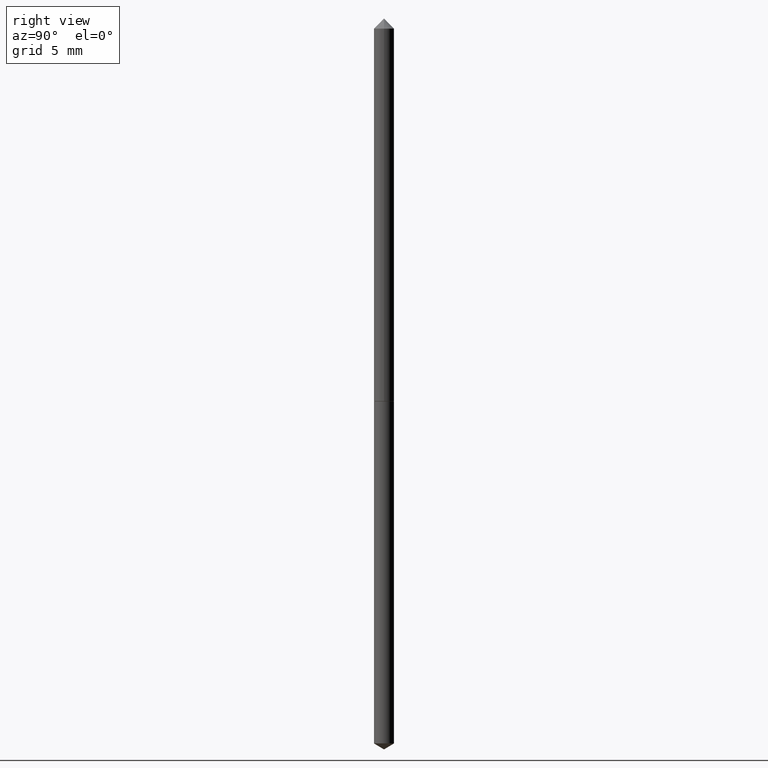
[diagram: clean part render]
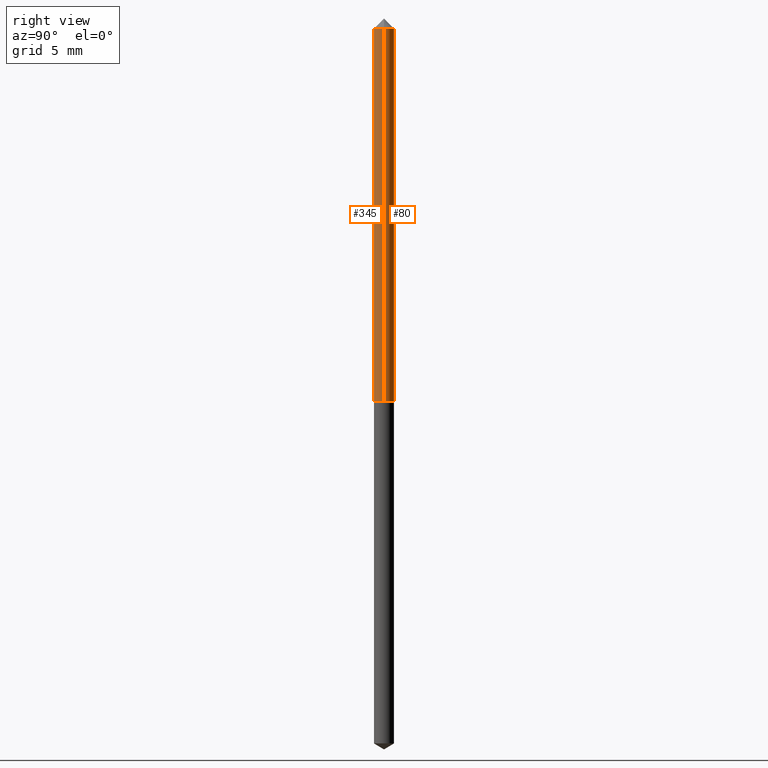
[diagram: same view with one multi-face feature highlighted, each face labeled with its STEP entity id]
A machine part, right view. The highlighted faces form ONE feature: a constant-radius fillet chain: 2 tangent blend faces with common blend radius 0.5207 mm. The faces share edges in the B-rep.
Their STEP definitions:
[1] entity #345 (Cylinder):
#2 = CARTESIAN_POINT ( 'NONE',  ( 0.02050000000000000433, -2.522595267314175209E-16, -0.03125000000000020123 ) ) ;
#13 = VECTOR ( 'NONE', #362, 39.37007874015748143 ) ;
#18 = DIRECTION ( 'NONE',  ( 1.000000000000000000, -6.982962677686267499E-15, 0.000000000000000000 ) ) ;
#48 = CARTESIAN_POINT ( 'NONE',  ( 7.642090019328601786E-31, -1.091087918388490144E-16, -0.03125000000000020123 ) ) ;
#59 = EDGE_CURVE ( 'NONE', #230, #143, #349, .T. ) ;
#63 = VERTEX_POINT ( 'NONE', #240 ) ;
#87 = CARTESIAN_POINT ( 'NONE',  ( -0.02050000000000005290, 1.456612608308209140E-16, -1.008381693502258247E-30 ) ) ;
#96 = DIRECTION ( 'NONE',  ( 1.000000000000000000, -6.982962677686276966E-15, 0.000000000000000000 ) ) ;
#105 = FACE_OUTER_BOUND ( 'NONE', #120, .T. ) ;
#112 = DIRECTION ( 'NONE',  ( 1.000000000000000000, -6.982962677686265922E-15, 4.876176775795935793E-29 ) ) ;
#116 = ORIENTED_EDGE ( 'NONE', *, *, #59, .F. ) ;
#120 = EDGE_LOOP ( 'NONE', ( #116, #279, #179, #233 ) ) ;
#125 = DIRECTION ( 'NONE',  ( -2.445468806185136597E-29, 3.491481338843145583E-15, 1.000000000000000000 ) ) ;
#127 = DIRECTION ( 'NONE',  ( -2.445468806185136597E-29, 3.491481338843145583E-15, 1.000000000000000000 ) ) ;
#129 = DIRECTION ( 'NONE',  ( -2.445468806185136877E-29, 3.491481338843145188E-15, 1.000000000000000000 ) ) ;
#143 = VERTEX_POINT ( 'NONE', #294 ) ;
#148 = DIRECTION ( 'NONE',  ( -2.445468806185136597E-29, 3.491481338843145583E-15, 1.000000000000000000 ) ) ;
#160 = CIRCLE ( 'NONE', #361, 0.02050000000000000433 ) ;
#177 = EDGE_CURVE ( 'NONE', #63, #292, #186, .T. ) ;
#179 = ORIENTED_EDGE ( 'NONE', *, *, #177, .T. ) ;
#183 = CARTESIAN_POINT ( 'NONE',  ( 0.02050000000000005290, -1.431507348925688147E-16, 9.996162390381693739E-31 ) ) ;
#186 = LINE ( 'NONE', #183, #249 ) ;
#217 = AXIS2_PLACEMENT_3D ( 'NONE', #258, #148, #112 ) ;
#230 = VERTEX_POINT ( 'NONE', #270 ) ;
#233 = ORIENTED_EDGE ( 'NONE', *, *, #256, .F. ) ;
#237 = EDGE_CURVE ( 'NONE', #230, #63, #344, .T. ) ;
#240 = CARTESIAN_POINT ( 'NONE',  ( 0.02050000000000009454, -2.903166733248076003E-15, -0.7905000000000000915 ) ) ;
#249 = VECTOR ( 'NONE', #129, 39.37007874015748143 ) ;
#251 = CYLINDRICAL_SURFACE ( 'NONE', #217, 0.02050000000000005290 ) ;
#256 = EDGE_CURVE ( 'NONE', #143, #292, #160, .T. ) ;
#258 = CARTESIAN_POINT ( 'NONE',  ( 0.000000000000000000, 0.000000000000000000, 0.000000000000000000 ) ) ;
#265 = CARTESIAN_POINT ( 'NONE',  ( 1.933143091289350590E-29, -2.760015998355506794E-15, -0.7905000000000000915 ) ) ;
#270 = CARTESIAN_POINT ( 'NONE',  ( -0.02050000000000009454, -2.614354737524685732E-15, -0.7905000000000000915 ) ) ;
#279 = ORIENTED_EDGE ( 'NONE', *, *, #237, .T. ) ;
#292 = VERTEX_POINT ( 'NONE', #2 ) ;
#294 = CARTESIAN_POINT ( 'NONE',  ( -0.02050000000000000433, -1.288901134266355899E-15, -0.03125000000000020123 ) ) ;
#318 = AXIS2_PLACEMENT_3D ( 'NONE', #265, #125, #96 ) ;
#344 = CIRCLE ( 'NONE', #318, 0.02050000000000009454 ) ;
#345 = ADVANCED_FACE ( 'NONE', ( #105 ), #251, .T. ) ;
#349 = LINE ( 'NONE', #87, #13 ) ;
#361 = AXIS2_PLACEMENT_3D ( 'NONE', #48, #127, #18 ) ;
#362 = DIRECTION ( 'NONE',  ( -2.445468806185136877E-29, 3.491481338843145188E-15, 1.000000000000000000 ) ) ;
[2] entity #80 (Cylinder):
#2 = CARTESIAN_POINT ( 'NONE',  ( 0.02050000000000000433, -2.522595267314175209E-16, -0.03125000000000020123 ) ) ;
#13 = VECTOR ( 'NONE', #362, 39.37007874015748143 ) ;
#20 = DIRECTION ( 'NONE',  ( -2.445468806185136597E-29, 3.491481338843145583E-15, 1.000000000000000000 ) ) ;
#31 = ORIENTED_EDGE ( 'NONE', *, *, #220, .F. ) ;
#59 = EDGE_CURVE ( 'NONE', #230, #143, #349, .T. ) ;
#60 = CYLINDRICAL_SURFACE ( 'NONE', #204, 0.02050000000000005290 ) ;
#63 = VERTEX_POINT ( 'NONE', #240 ) ;
#80 = ADVANCED_FACE ( 'NONE', ( #335 ), #60, .T. ) ;
#87 = CARTESIAN_POINT ( 'NONE',  ( -0.02050000000000005290, 1.456612608308209140E-16, -1.008381693502258247E-30 ) ) ;
#90 = AXIS2_PLACEMENT_3D ( 'NONE', #326, #20, #271 ) ;
#113 = DIRECTION ( 'NONE',  ( 1.000000000000000000, -6.982962677686265922E-15, 4.876176775795935793E-29 ) ) ;
#129 = DIRECTION ( 'NONE',  ( -2.445468806185136877E-29, 3.491481338843145188E-15, 1.000000000000000000 ) ) ;
#130 = EDGE_LOOP ( 'NONE', ( #202, #329, #31, #163 ) ) ;
#143 = VERTEX_POINT ( 'NONE', #294 ) ;
#146 = CIRCLE ( 'NONE', #305, 0.02050000000000009454 ) ;
#163 = ORIENTED_EDGE ( 'NONE', *, *, #177, .F. ) ;
#177 = EDGE_CURVE ( 'NONE', #63, #292, #186, .T. ) ;
#178 = DIRECTION ( 'NONE',  ( -2.445468806185136597E-29, 3.491481338843145583E-15, 1.000000000000000000 ) ) ;
#183 = CARTESIAN_POINT ( 'NONE',  ( 0.02050000000000005290, -1.431507348925688147E-16, 9.996162390381693739E-31 ) ) ;
#185 = DIRECTION ( 'NONE',  ( -2.445468806185136597E-29, 3.491481338843145583E-15, 1.000000000000000000 ) ) ;
#186 = LINE ( 'NONE', #183, #249 ) ;
#202 = ORIENTED_EDGE ( 'NONE', *, *, #307, .T. ) ;
#204 = AXIS2_PLACEMENT_3D ( 'NONE', #312, #178, #113 ) ;
#220 = EDGE_CURVE ( 'NONE', #292, #143, #351, .T. ) ;
#230 = VERTEX_POINT ( 'NONE', #270 ) ;
#240 = CARTESIAN_POINT ( 'NONE',  ( 0.02050000000000009454, -2.903166733248076003E-15, -0.7905000000000000915 ) ) ;
#249 = VECTOR ( 'NONE', #129, 39.37007874015748143 ) ;
#270 = CARTESIAN_POINT ( 'NONE',  ( -0.02050000000000009454, -2.614354737524685732E-15, -0.7905000000000000915 ) ) ;
#271 = DIRECTION ( 'NONE',  ( 1.000000000000000000, -6.982962677686267499E-15, 0.000000000000000000 ) ) ;
#292 = VERTEX_POINT ( 'NONE', #2 ) ;
#293 = DIRECTION ( 'NONE',  ( 1.000000000000000000, -6.982962677686276966E-15, 0.000000000000000000 ) ) ;
#294 = CARTESIAN_POINT ( 'NONE',  ( -0.02050000000000000433, -1.288901134266355899E-15, -0.03125000000000020123 ) ) ;
#305 = AXIS2_PLACEMENT_3D ( 'NONE', #330, #185, #293 ) ;
#307 = EDGE_CURVE ( 'NONE', #63, #230, #146, .T. ) ;
#312 = CARTESIAN_POINT ( 'NONE',  ( 0.000000000000000000, 0.000000000000000000, 0.000000000000000000 ) ) ;
#326 = CARTESIAN_POINT ( 'NONE',  ( 7.642090019328601786E-31, -1.091087918388490144E-16, -0.03125000000000020123 ) ) ;
#329 = ORIENTED_EDGE ( 'NONE', *, *, #59, .T. ) ;
#330 = CARTESIAN_POINT ( 'NONE',  ( 1.933143091289350590E-29, -2.760015998355506794E-15, -0.7905000000000000915 ) ) ;
#335 = FACE_OUTER_BOUND ( 'NONE', #130, .T. ) ;
#349 = LINE ( 'NONE', #87, #13 ) ;
#351 = CIRCLE ( 'NONE', #90, 0.02050000000000000433 ) ;
#362 = DIRECTION ( 'NONE',  ( -2.445468806185136877E-29, 3.491481338843145188E-15, 1.000000000000000000 ) ) ;